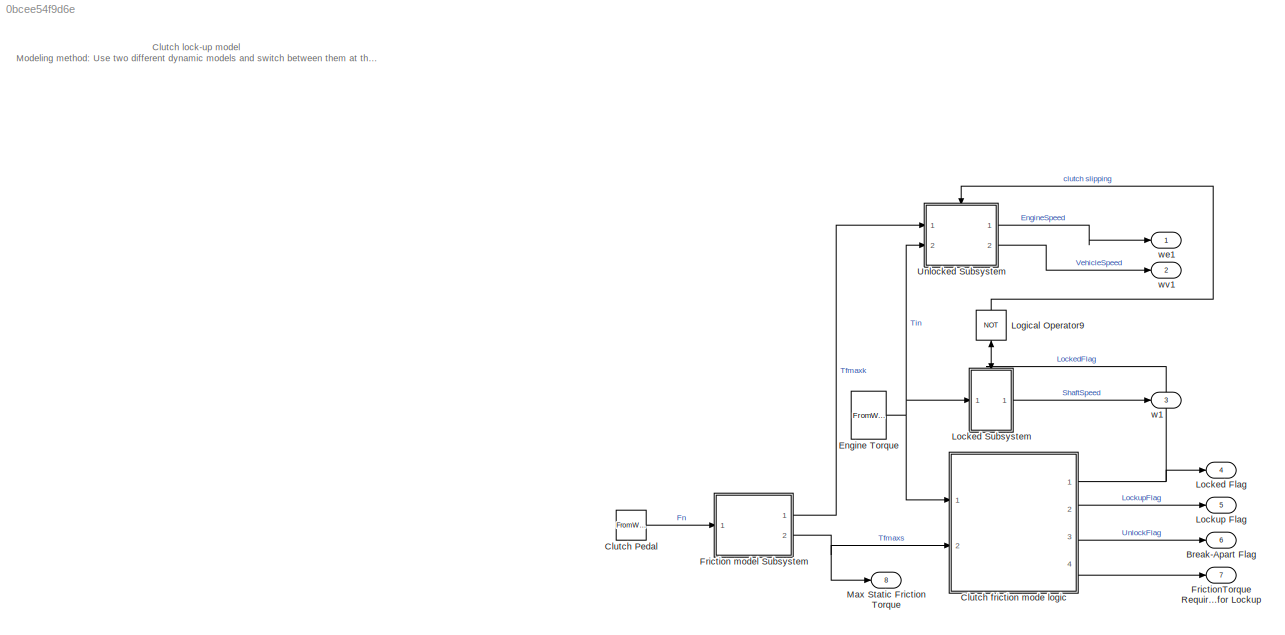
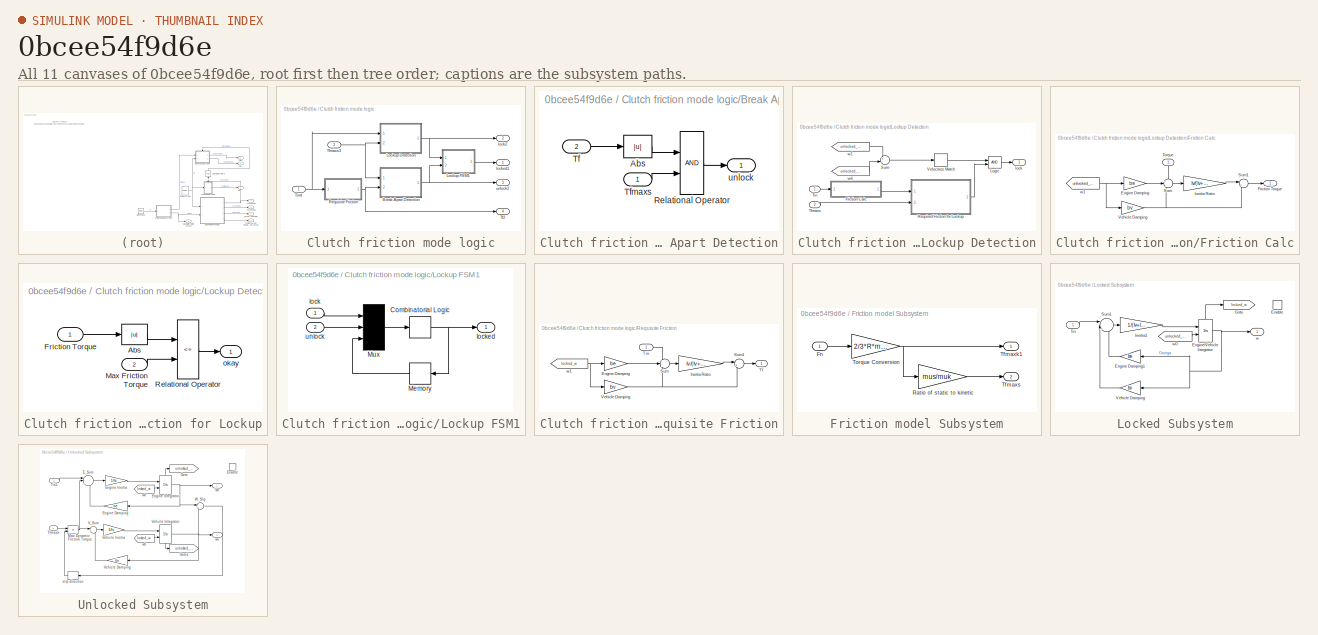
[diagram: thumbnail index - all 11 canvases of the model, root first then tree order]
MODEL slx_0bcee54f9d6e
KIND model
CONFIG AbsTol = auto
CONFIG EnableMultiTasking = off
CONFIG FixedStep = auto
CONFIG MaxStep = auto
CONFIG MinStep = auto
CONFIG RelTol = 1e-3
CONFIG SampleTimeConstraint = Unconstrained
CONFIG SolverName = VariableStepAuto
CONFIG StartTime = 0.0
CONFIG StopTime = 10.0
BLOCK [Outport] Break-Apart Flag
  InitialOutput = 0
  Port = 6
  VectorParamsAs1DForOutWhenUnconnected = off
BLOCK [FromWorkspace] Clutch Pedal
  VariableName = Fn
  ZeroCross = off
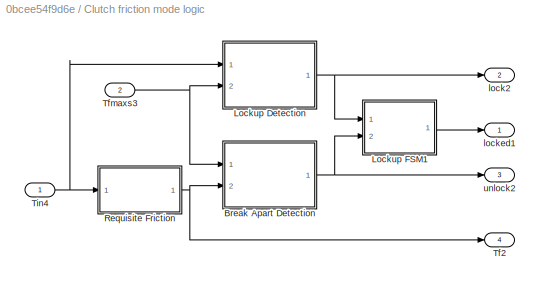
BLOCK [SubSystem] Clutch friction mode logic
  Ports = [2, 4]
  RequestExecContextInheritance = off
BLOCK [SubSystem] Clutch friction mode logic/Break Apart Detection
  Ports = [2, 1]
  RequestExecContextInheritance = off
BLOCK [Abs] Clutch friction mode logic/Break Apart Detection/Abs
BLOCK [RelationalOperator] Clutch friction mode logic/Break Apart Detection/Relational Operator
  OutDataTypeStr = boolean
  Ports = [2, 1]
BLOCK [Inport] Clutch friction mode logic/Break Apart Detection/Tf
  Port = 2
BLOCK [Inport] Clutch friction mode logic/Break Apart Detection/Tfmaxs
BLOCK [Outport] Clutch friction mode logic/Break Apart Detection/unlock
  InitialOutput = 0
  VectorParamsAs1DForOutWhenUnconnected = off
BLOCK [SubSystem] Clutch friction mode logic/Lockup Detection
  Ports = [2, 1]
  RequestExecContextInheritance = off
BLOCK [SubSystem] Clutch friction mode logic/Lockup Detection/Friction Calc
  Ports = [1, 1]
  RequestExecContextInheritance = off
BLOCK [Gain] Clutch friction mode logic/Lockup Detection/Friction Calc/Engine Damping
  Gain = be
  NameLocation = top
  OutDataTypeStr = Inherit: Same as input
  ParamDataTypeStr = Inherit: Same as input
  SaturateOnIntegerOverflow = on
BLOCK [Outport] Clutch friction mode logic/Lockup Detection/Friction Calc/Friction Torque
  InitialOutput = 0
  VectorParamsAs1DForOutWhenUnconnected = off
BLOCK [Gain] Clutch friction mode logic/Lockup Detection/Friction Calc/Inertia Ratio
  Gain = Iv/(Iv+Ie)
  OutDataTypeStr = Inherit: Same as input
  ParamDataTypeStr = Inherit: Same as input
  SaturateOnIntegerOverflow = on
BLOCK [Sum] Clutch friction mode logic/Lockup Detection/Friction Calc/Sum
  InputSameDT = on
  Inputs = +--
  OutDataTypeStr = Inherit: Same as first input
  Ports = [3, 1]
  SaturateOnIntegerOverflow = on
BLOCK [Sum] Clutch friction mode logic/Lockup Detection/Friction Calc/Sum1
  InputSameDT = on
  Inputs = |++
  OutDataTypeStr = Inherit: Same as first input
  Ports = [2, 1]
  SaturateOnIntegerOverflow = on
BLOCK [Inport] Clutch friction mode logic/Lockup Detection/Friction Calc/Torque
  NameLocation = left
BLOCK [Gain] Clutch friction mode logic/Lockup Detection/Friction Calc/Vehicle Damping
  Gain = bv
  OutDataTypeStr = Inherit: Same as input
  ParamDataTypeStr = Inherit: Same as input
  SaturateOnIntegerOverflow = on
BLOCK [From] Clutch friction mode logic/Lockup Detection/Friction Calc/w1
  GotoTag = unlocked_we
  TagVisibility = global
BLOCK [Logic] Clutch friction mode logic/Lockup Detection/Logic
  AttributesFormatString = (%<Operator>)
  IconShape = distinctive
  OutDataTypeStr = boolean
  Ports = [2, 1]
BLOCK [SubSystem] Clutch friction mode logic/Lockup Detection/Required Friction for Lockup
  Ports = [2, 1]
  RequestExecContextInheritance = off
BLOCK [Abs] Clutch friction mode logic/Lockup Detection/Required Friction for Lockup/Abs
BLOCK [Inport] Clutch friction mode logic/Lockup Detection/Required Friction for Lockup/Friction Torque
BLOCK [Inport] Clutch friction mode logic/Lockup Detection/Required Friction for Lockup/Max Friction Torque
  Port = 2
BLOCK [RelationalOperator] Clutch friction mode logic/Lockup Detection/Required Friction for Lockup/Relational Operator
  Operator = <=
  OutDataTypeStr = boolean
  Ports = [2, 1]
BLOCK [Outport] Clutch friction mode logic/Lockup Detection/Required Friction for Lockup/okay
  InitialOutput = 0
  VectorParamsAs1DForOutWhenUnconnected = off
BLOCK [Sum] Clutch friction mode logic/Lockup Detection/Sum
  InputSameDT = on
  Inputs = +-
  OutDataTypeStr = Inherit: Same as first input
  Ports = [2, 1]
  SaturateOnIntegerOverflow = on
BLOCK [Inport] Clutch friction mode logic/Lockup Detection/Tfmaxs
  Port = 2
BLOCK [Inport] Clutch friction mode logic/Lockup Detection/Tin
BLOCK [HitCross] Clutch friction mode logic/Lockup Detection/Velocities Match
  Ports = [1, 1]
BLOCK [Outport] Clutch friction mode logic/Lockup Detection/lock
  InitialOutput = 0
  VectorParamsAs1DForOutWhenUnconnected = off
BLOCK [From] Clutch friction mode logic/Lockup Detection/w1
  GotoTag = unlocked_we
  TagVisibility = global
BLOCK [From] Clutch friction mode logic/Lockup Detection/w6
  GotoTag = unlocked_wv
  TagVisibility = global
BLOCK [SubSystem] Clutch friction mode logic/Lockup FSM1
  Ports = [2, 1]
  RequestExecContextInheritance = off
BLOCK [CombinatorialLogic] Clutch friction mode logic/Lockup FSM1/Combinatorial Logic
  TruthTable = [0;1;0;0;1;1;1;0]
BLOCK [Memory] Clutch friction mode logic/Lockup FSM1/Memory
BLOCK [Mux] Clutch friction mode logic/Lockup FSM1/Mux
  Inputs = 3
  Ports = [3, 1]
BLOCK [Inport] Clutch friction mode logic/Lockup FSM1/lock
  NameLocation = top
BLOCK [Outport] Clutch friction mode logic/Lockup FSM1/locked
  InitialOutput = 0
  VectorParamsAs1DForOutWhenUnconnected = off
BLOCK [Inport] Clutch friction mode logic/Lockup FSM1/unlock
  Port = 2
BLOCK [SubSystem] Clutch friction mode logic/Requisite Friction
  Ports = [1, 1]
  RequestExecContextInheritance = off
BLOCK [Gain] Clutch friction mode logic/Requisite Friction/Engine Damping
  Gain = be
  NameLocation = top
  OutDataTypeStr = Inherit: Same as input
  ParamDataTypeStr = Inherit: Same as input
  SaturateOnIntegerOverflow = on
BLOCK [Gain] Clutch friction mode logic/Requisite Friction/Inertia Ratio
  Gain = Iv/(Iv+Ie)
  OutDataTypeStr = Inherit: Same as input
  ParamDataTypeStr = Inherit: Same as input
  SaturateOnIntegerOverflow = on
BLOCK [Sum] Clutch friction mode logic/Requisite Friction/Sum
  InputSameDT = on
  Inputs = +--
  OutDataTypeStr = Inherit: Same as first input
  Ports = [3, 1]
  SaturateOnIntegerOverflow = on
BLOCK [Sum] Clutch friction mode logic/Requisite Friction/Sum1
  InputSameDT = on
  Inputs = |++
  OutDataTypeStr = Inherit: Same as first input
  Ports = [2, 1]
  SaturateOnIntegerOverflow = on
BLOCK [Outport] Clutch friction mode logic/Requisite Friction/Tf
  InitialOutput = 0
  VectorParamsAs1DForOutWhenUnconnected = off
BLOCK [Inport] Clutch friction mode logic/Requisite Friction/Tin
BLOCK [Gain] Clutch friction mode logic/Requisite Friction/Vehicle Damping
  Gain = bv
  OutDataTypeStr = Inherit: Same as input
  ParamDataTypeStr = Inherit: Same as input
  SaturateOnIntegerOverflow = on
BLOCK [From] Clutch friction mode logic/Requisite Friction/w1
  GotoTag = locked_w
  NameLocation = top
  TagVisibility = global
BLOCK [Outport] Clutch friction mode logic/Tf2
  InitialOutput = 0
  Port = 4
  VectorParamsAs1DForOutWhenUnconnected = off
BLOCK [Inport] Clutch friction mode logic/Tfmaxs3
  Port = 2
BLOCK [Inport] Clutch friction mode logic/Tin4
BLOCK [Outport] Clutch friction mode logic/lock2
  InitialOutput = 0
  Port = 2
  VectorParamsAs1DForOutWhenUnconnected = off
BLOCK [Outport] Clutch friction mode logic/locked1
  InitialOutput = 0
  VectorParamsAs1DForOutWhenUnconnected = off
BLOCK [Outport] Clutch friction mode logic/unlock2
  InitialOutput = 0
  Port = 3
  VectorParamsAs1DForOutWhenUnconnected = off
BLOCK [FromWorkspace] Engine Torque
  VariableName = Tin
  ZeroCross = off
BLOCK [SubSystem] Friction model Subsystem
  Ports = [1, 2]
  RequestExecContextInheritance = off
BLOCK [Inport] Friction model Subsystem/Fn
BLOCK [Gain] Friction model Subsystem/Ratio of static to kinetic
  Gain = mus/muk
  OutDataTypeStr = Inherit: Same as input
  ParamDataTypeStr = Inherit: Same as input
  SaturateOnIntegerOverflow = on
BLOCK [Outport] Friction model Subsystem/Tfmaxk1
  InitialOutput = 0
  VectorParamsAs1DForOutWhenUnconnected = off
BLOCK [Outport] Friction model Subsystem/Tfmaxs
  InitialOutput = 0
  Port = 2
  VectorParamsAs1DForOutWhenUnconnected = off
BLOCK [Gain] Friction model Subsystem/Torque Conversion
  Gain = 2/3*R*muk
  OutDataTypeStr = Inherit: Same as input
  ParamDataTypeStr = Inherit: Same as input
  SaturateOnIntegerOverflow = on
BLOCK [Outport] FrictionTorque Required for Lockup
  InitialOutput = 0
  Port = 7
  VectorParamsAs1DForOutWhenUnconnected = off
BLOCK [Outport] Locked Flag
  InitialOutput = 0
  Port = 4
  VectorParamsAs1DForOutWhenUnconnected = off
BLOCK [SubSystem] Locked Subsystem
  Ports = [1, 1, 1]
  RequestExecContextInheritance = off
BLOCK [EnablePort] Locked Subsystem/Enable
  Ports = []
BLOCK [Gain] Locked Subsystem/Engine Damping1
  Gain = be
  OutDataTypeStr = Inherit: Same as input
  ParamDataTypeStr = Inherit: Same as input
  SaturateOnIntegerOverflow = on
BLOCK [Integrator] Locked Subsystem/Engine//Vehicle Integrator
  InitialConditionSource = external
  Ports = [2, 1, 0, 0, 1]
  ShowStatePort = on
BLOCK [Goto] Locked Subsystem/Goto
  GotoTag = locked_w
  NameLocation = top
  TagVisibility = global
BLOCK [Gain] Locked Subsystem/Inertia1
  Gain = 1/(Iv+Ie)
  OutDataTypeStr = Inherit: Same as input
  ParamDataTypeStr = Inherit: Same as input
  SaturateOnIntegerOverflow = on
BLOCK [Sum] Locked Subsystem/Sum1
  InputSameDT = on
  Inputs = ||+--
  OutDataTypeStr = Inherit: Same as first input
  Ports = [3, 1]
  SaturateOnIntegerOverflow = on
BLOCK [Inport] Locked Subsystem/Tin
BLOCK [Gain] Locked Subsystem/Vehicle Damping
  Gain = bv
  OutDataTypeStr = Inherit: Same as input
  ParamDataTypeStr = Inherit: Same as input
  SaturateOnIntegerOverflow = on
BLOCK [Outport] Locked Subsystem/w
  InitialOutput = 0
  VectorParamsAs1DForOutWhenUnconnected = off
BLOCK [From] Locked Subsystem/w0
  GotoTag = unlocked_we
  TagVisibility = global
BLOCK [Outport] Lockup Flag
  InitialOutput = 0
  Port = 5
  VectorParamsAs1DForOutWhenUnconnected = off
BLOCK [Logic] Logical Operator9
  IconShape = distinctive
  Inputs = 1
  NameLocation = left
  Operator = NOT
  OutDataTypeStr = boolean
  Ports = [1, 1]
BLOCK [Outport] Max Static Friction Torque
  InitialOutput = 0
  Port = 8
  VectorParamsAs1DForOutWhenUnconnected = off
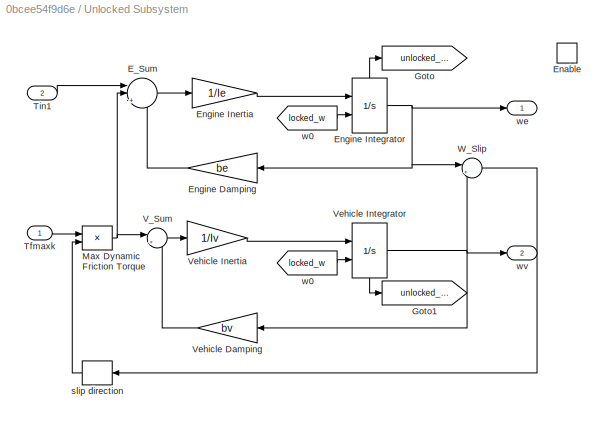
BLOCK [SubSystem] Unlocked Subsystem
  Ports = [2, 2, 1]
  RequestExecContextInheritance = off
BLOCK [Sum] Unlocked Subsystem/E_Sum
  InputSameDT = on
  Inputs = ||+--
  NameLocation = top
  OutDataTypeStr = Inherit: Same as first input
  Ports = [3, 1]
  SaturateOnIntegerOverflow = on
BLOCK [EnablePort] Unlocked Subsystem/Enable
  Ports = []
BLOCK [Gain] Unlocked Subsystem/Engine Damping
  Gain = be
  OutDataTypeStr = Inherit: Same as input
  ParamDataTypeStr = Inherit: Same as input
  SaturateOnIntegerOverflow = on
BLOCK [Gain] Unlocked Subsystem/Engine Inertia
  Gain = 1/Ie
  OutDataTypeStr = Inherit: Same as input
  ParamDataTypeStr = Inherit: Same as input
  SaturateOnIntegerOverflow = on
BLOCK [Integrator] Unlocked Subsystem/Engine Integrator
  InitialConditionSource = external
  Ports = [2, 1, 0, 0, 1]
  ShowStatePort = on
BLOCK [Goto] Unlocked Subsystem/Goto
  GotoTag = unlocked_we
  TagVisibility = global
BLOCK [Goto] Unlocked Subsystem/Goto1
  GotoTag = unlocked_wv
  TagVisibility = global
BLOCK [Product] Unlocked Subsystem/Max Dynamic Friction Torque
  InputSameDT = on
  OutDataTypeStr = Inherit: Same as first input
  Ports = [2, 1]
  RndMeth = Zero
  SaturateOnIntegerOverflow = on
BLOCK [Inport] Unlocked Subsystem/Tfmaxk
BLOCK [Inport] Unlocked Subsystem/Tin1
  Port = 2
BLOCK [Sum] Unlocked Subsystem/V_Sum
  InputSameDT = on
  Inputs = |+-
  NameLocation = top
  OutDataTypeStr = Inherit: Same as first input
  Ports = [2, 1]
  SaturateOnIntegerOverflow = on
BLOCK [Gain] Unlocked Subsystem/Vehicle Damping
  Gain = bv
  OutDataTypeStr = Inherit: Same as input
  ParamDataTypeStr = Inherit: Same as input
  SaturateOnIntegerOverflow = on
BLOCK [Gain] Unlocked Subsystem/Vehicle Inertia
  Gain = 1/Iv
  OutDataTypeStr = Inherit: Same as input
  ParamDataTypeStr = Inherit: Same as input
  SaturateOnIntegerOverflow = on
BLOCK [Integrator] Unlocked Subsystem/Vehicle Integrator
  InitialConditionSource = external
  NameLocation = top
  Ports = [2, 1, 0, 0, 1]
  ShowStatePort = on
BLOCK [Sum] Unlocked Subsystem/W_Slip
  InputSameDT = on
  Inputs = |+-
  NameLocation = top
  OutDataTypeStr = Inherit: Same as first input
  Ports = [2, 1]
  SaturateOnIntegerOverflow = on
BLOCK [Signum] Unlocked Subsystem/slip direction
BLOCK [From] Unlocked Subsystem/w0
  GotoTag = locked_w
  TagVisibility = global
BLOCK [From] Unlocked Subsystem/w0 
  GotoTag = locked_w
  TagVisibility = global
BLOCK [Outport] Unlocked Subsystem/we
  InitialOutput = 0
  VectorParamsAs1DForOutWhenUnconnected = off
BLOCK [Outport] Unlocked Subsystem/wv
  InitialOutput = 0
  Port = 2
  VectorParamsAs1DForOutWhenUnconnected = off
BLOCK [Outport] w1
  InitialOutput = 0
  Port = 3
  VectorParamsAs1DForOutWhenUnconnected = off
BLOCK [Outport] we1
  InitialOutput = 0
  VectorParamsAs1DForOutWhenUnconnected = off
BLOCK [Outport] wv1
  InitialOutput = 0
  Port = 2
  VectorParamsAs1DForOutWhenUnconnected = off
ANNOTATION (root): Clutch lock-up model Modeling method: Use two different dynamic models and switch between them at the appropriate times. The simulation model for the clutch system uses enabled subsystems , a particularly useful feature in Simulink. The simulation can use one subsystem while the clutch is slipping and the other when it is locked.
LINE Clutch Pedal:1 -> Friction model Subsystem:1
LINE Clutch friction mode logic/Break Apart Detection/Abs:1 -> Clutch friction mode logic/Break Apart Detection/Relational Operator:1
LINE Clutch friction mode logic/Break Apart Detection/Relational Operator:1 -> Clutch friction mode logic/Break Apart Detection/unlock:1
LINE Clutch friction mode logic/Break Apart Detection/Tf:1 -> Clutch friction mode logic/Break Apart Detection/Abs:1
LINE Clutch friction mode logic/Break Apart Detection/Tfmaxs:1 -> Clutch friction mode logic/Break Apart Detection/Relational Operator:2
NET Clutch friction mode logic/Break Apart Detection:1 -> Clutch friction mode logic/Lockup FSM1:2, Clutch friction mode logic/unlock2:1
LINE Clutch friction mode logic/Lockup Detection/Friction Calc/Engine Damping:1 -> Clutch friction mode logic/Lockup Detection/Friction Calc/Sum:2
LINE Clutch friction mode logic/Lockup Detection/Friction Calc/Inertia Ratio:1 -> Clutch friction mode logic/Lockup Detection/Friction Calc/Sum1:1
LINE Clutch friction mode logic/Lockup Detection/Friction Calc/Sum1:1 -> Clutch friction mode logic/Lockup Detection/Friction Calc/Friction Torque:1
LINE Clutch friction mode logic/Lockup Detection/Friction Calc/Sum:1 -> Clutch friction mode logic/Lockup Detection/Friction Calc/Inertia Ratio:1
LINE Clutch friction mode logic/Lockup Detection/Friction Calc/Torque:1 -> Clutch friction mode logic/Lockup Detection/Friction Calc/Sum:1
NET Clutch friction mode logic/Lockup Detection/Friction Calc/Vehicle Damping:1 -> Clutch friction mode logic/Lockup Detection/Friction Calc/Sum1:2, Clutch friction mode logic/Lockup Detection/Friction Calc/Sum:3
NET Clutch friction mode logic/Lockup Detection/Friction Calc/w1:1 -> Clutch friction mode logic/Lockup Detection/Friction Calc/Engine Damping:1, Clutch friction mode logic/Lockup Detection/Friction Calc/Vehicle Damping:1
LINE Clutch friction mode logic/Lockup Detection/Friction Calc:1 -> Clutch friction mode logic/Lockup Detection/Required Friction for Lockup:1
LINE Clutch friction mode logic/Lockup Detection/Logic:1 -> Clutch friction mode logic/Lockup Detection/lock:1
LINE Clutch friction mode logic/Lockup Detection/Required Friction for Lockup/Abs:1 -> Clutch friction mode logic/Lockup Detection/Required Friction for Lockup/Relational Operator:1
LINE Clutch friction mode logic/Lockup Detection/Required Friction for Lockup/Friction Torque:1 -> Clutch friction mode logic/Lockup Detection/Required Friction for Lockup/Abs:1
LINE Clutch friction mode logic/Lockup Detection/Required Friction for Lockup/Max Friction Torque:1 -> Clutch friction mode logic/Lockup Detection/Required Friction for Lockup/Relational Operator:2
LINE Clutch friction mode logic/Lockup Detection/Required Friction for Lockup/Relational Operator:1 -> Clutch friction mode logic/Lockup Detection/Required Friction for Lockup/okay:1
LINE Clutch friction mode logic/Lockup Detection/Required Friction for Lockup:1 -> Clutch friction mode logic/Lockup Detection/Logic:2
LINE Clutch friction mode logic/Lockup Detection/Sum:1 -> Clutch friction mode logic/Lockup Detection/Velocities Match:1
LINE Clutch friction mode logic/Lockup Detection/Tfmaxs:1 -> Clutch friction mode logic/Lockup Detection/Required Friction for Lockup:2
LINE Clutch friction mode logic/Lockup Detection/Tin:1 -> Clutch friction mode logic/Lockup Detection/Friction Calc:1
LINE Clutch friction mode logic/Lockup Detection/Velocities Match:1 -> Clutch friction mode logic/Lockup Detection/Logic:1
LINE Clutch friction mode logic/Lockup Detection/w1:1 -> Clutch friction mode logic/Lockup Detection/Sum:1
LINE Clutch friction mode logic/Lockup Detection/w6:1 -> Clutch friction mode logic/Lockup Detection/Sum:2
NET Clutch friction mode logic/Lockup Detection:1 -> Clutch friction mode logic/Lockup FSM1:1, Clutch friction mode logic/lock2:1
NET Clutch friction mode logic/Lockup FSM1/Combinatorial Logic:1 -> Clutch friction mode logic/Lockup FSM1/Memory:1, Clutch friction mode logic/Lockup FSM1/locked:1
LINE Clutch friction mode logic/Lockup FSM1/Memory:1 -> Clutch friction mode logic/Lockup FSM1/Mux:3
LINE Clutch friction mode logic/Lockup FSM1/Mux:1 -> Clutch friction mode logic/Lockup FSM1/Combinatorial Logic:1
LINE Clutch friction mode logic/Lockup FSM1/lock:1 -> Clutch friction mode logic/Lockup FSM1/Mux:1
LINE Clutch friction mode logic/Lockup FSM1/unlock:1 -> Clutch friction mode logic/Lockup FSM1/Mux:2
LINE Clutch friction mode logic/Lockup FSM1:1 -> Clutch friction mode logic/locked1:1
LINE Clutch friction mode logic/Requisite Friction/Engine Damping:1 -> Clutch friction mode logic/Requisite Friction/Sum:2
LINE Clutch friction mode logic/Requisite Friction/Inertia Ratio:1 -> Clutch friction mode logic/Requisite Friction/Sum1:1
LINE Clutch friction mode logic/Requisite Friction/Sum1:1 -> Clutch friction mode logic/Requisite Friction/Tf:1
LINE Clutch friction mode logic/Requisite Friction/Sum:1 -> Clutch friction mode logic/Requisite Friction/Inertia Ratio:1
LINE Clutch friction mode logic/Requisite Friction/Tin:1 -> Clutch friction mode logic/Requisite Friction/Sum:1
NET Clutch friction mode logic/Requisite Friction/Vehicle Damping:1 -> Clutch friction mode logic/Requisite Friction/Sum1:2, Clutch friction mode logic/Requisite Friction/Sum:3
NET Clutch friction mode logic/Requisite Friction/w1:1 -> Clutch friction mode logic/Requisite Friction/Engine Damping:1, Clutch friction mode logic/Requisite Friction/Vehicle Damping:1
NET Clutch friction mode logic/Requisite Friction:1 -> Clutch friction mode logic/Break Apart Detection:2, Clutch friction mode logic/Tf2:1
NET Clutch friction mode logic/Tfmaxs3:1 -> Clutch friction mode logic/Break Apart Detection:1, Clutch friction mode logic/Lockup Detection:2
NET Clutch friction mode logic/Tin4:1 -> Clutch friction mode logic/Lockup Detection:1, Clutch friction mode logic/Requisite Friction:1
NET Clutch friction mode logic:1 -> Locked Flag:1, Locked Subsystem:enable, Logical Operator9:1
LINE Clutch friction mode logic:2 -> Lockup Flag:1
LINE Clutch friction mode logic:3 -> Break-Apart Flag:1
LINE Clutch friction mode logic:4 -> FrictionTorque Required for Lockup:1
NET Engine Torque:1 -> Clutch friction mode logic:1, Locked Subsystem:1, Unlocked Subsystem:2
LINE Friction model Subsystem/Fn:1 -> Friction model Subsystem/Torque Conversion:1
LINE Friction model Subsystem/Ratio of static to kinetic:1 -> Friction model Subsystem/Tfmaxs:1
NET Friction model Subsystem/Torque Conversion:1 -> Friction model Subsystem/Ratio of static to kinetic:1, Friction model Subsystem/Tfmaxk1:1
LINE Friction model Subsystem:1 -> Unlocked Subsystem:1
NET Friction model Subsystem:2 -> Clutch friction mode logic:2, Max Static Friction Torque:1
LINE Locked Subsystem/Engine Damping1:1 -> Locked Subsystem/Sum1:3
NET Locked Subsystem/Engine//Vehicle Integrator:1 -> Locked Subsystem/Engine Damping1:1, Locked Subsystem/Vehicle Damping:1, Locked Subsystem/w:1
LINE Locked Subsystem/Engine//Vehicle Integrator:state -> Locked Subsystem/Goto:1
LINE Locked Subsystem/Inertia1:1 -> Locked Subsystem/Engine//Vehicle Integrator:1
LINE Locked Subsystem/Sum1:1 -> Locked Subsystem/Inertia1:1
LINE Locked Subsystem/Tin:1 -> Locked Subsystem/Sum1:1
LINE Locked Subsystem/Vehicle Damping:1 -> Locked Subsystem/Sum1:2
LINE Locked Subsystem/w0:1 -> Locked Subsystem/Engine//Vehicle Integrator:2
LINE Locked Subsystem:1 -> w1:1
LINE Logical Operator9:1 -> Unlocked Subsystem:enable
LINE Unlocked Subsystem/E_Sum:1 -> Unlocked Subsystem/Engine Inertia:1
LINE Unlocked Subsystem/Engine Damping:1 -> Unlocked Subsystem/E_Sum:3
LINE Unlocked Subsystem/Engine Inertia:1 -> Unlocked Subsystem/Engine Integrator:1
NET Unlocked Subsystem/Engine Integrator:1 -> Unlocked Subsystem/Engine Damping:1, Unlocked Subsystem/W_Slip:1, Unlocked Subsystem/we:1
LINE Unlocked Subsystem/Engine Integrator:state -> Unlocked Subsystem/Goto:1
NET Unlocked Subsystem/Max Dynamic Friction Torque:1 -> Unlocked Subsystem/E_Sum:2, Unlocked Subsystem/V_Sum:1
LINE Unlocked Subsystem/Tfmaxk:1 -> Unlocked Subsystem/Max Dynamic Friction Torque:1
LINE Unlocked Subsystem/Tin1:1 -> Unlocked Subsystem/E_Sum:1
LINE Unlocked Subsystem/V_Sum:1 -> Unlocked Subsystem/Vehicle Inertia:1
LINE Unlocked Subsystem/Vehicle Damping:1 -> Unlocked Subsystem/V_Sum:2
LINE Unlocked Subsystem/Vehicle Inertia:1 -> Unlocked Subsystem/Vehicle Integrator:1
NET Unlocked Subsystem/Vehicle Integrator:1 -> Unlocked Subsystem/Vehicle Damping:1, Unlocked Subsystem/W_Slip:2, Unlocked Subsystem/wv:1
LINE Unlocked Subsystem/Vehicle Integrator:state -> Unlocked Subsystem/Goto1:1
LINE Unlocked Subsystem/W_Slip:1 -> Unlocked Subsystem/slip direction:1
LINE Unlocked Subsystem/slip direction:1 -> Unlocked Subsystem/Max Dynamic Friction Torque:2
LINE Unlocked Subsystem/w0 :1 -> Unlocked Subsystem/Engine Integrator:2
LINE Unlocked Subsystem/w0:1 -> Unlocked Subsystem/Vehicle Integrator:2
LINE Unlocked Subsystem:1 -> we1:1
LINE Unlocked Subsystem:2 -> wv1:1
note: NET lines group one-source signal fan-out (src -> all destinations, sorted); 1:1 wires keep LINE
